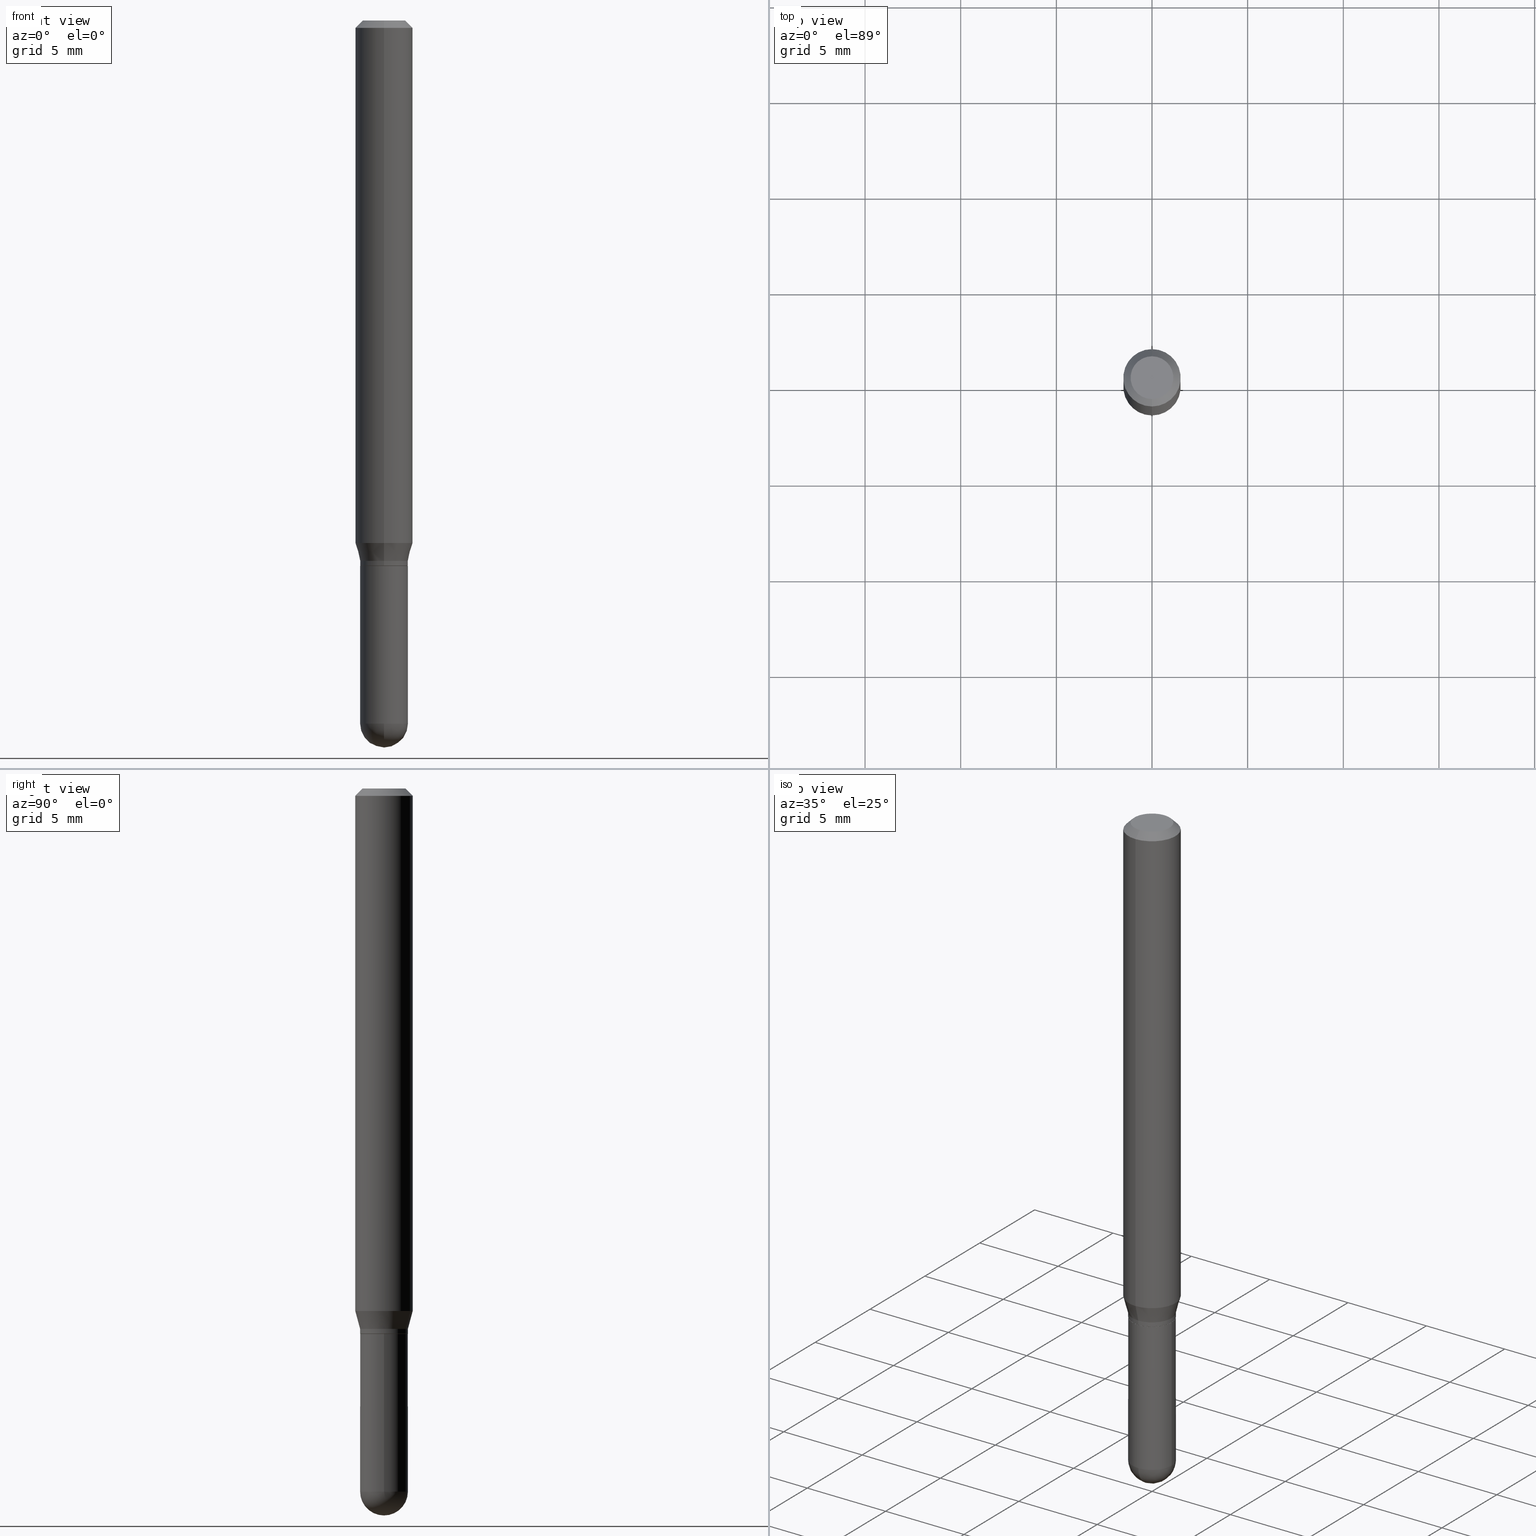
[diagram: canonical four-view strip — front | top / right | iso, engineering-drawing reading convention]
A machine part, canonical four-view strip (front | top / right | iso — engineering-drawing reading convention). The complete STEP part file that produces these views, byte-faithful:
ISO-10303-21;
HEADER;
FILE_DESCRIPTION (( 'STEP AP203' ),
    '1' );
FILE_NAME ('48866.STEP',
    '2024-03-08T13:32:18',
    ( '' ),
    ( '' ),
    'SwSTEP 2.0',
    'SolidWorks 2023',
    '' );
FILE_SCHEMA (( 'CONFIG_CONTROL_DESIGN' ));
ENDSEC;

DATA;
#1 = DIRECTION ( 'NONE',  ( -2.445540907336680445E-29, 3.491378085890391934E-15, 1.000000000000000000 ) ) ;
#2 = DIRECTION ( 'NONE',  ( -2.445468806185136597E-29, 3.491481338843145583E-15, 1.000000000000000000 ) ) ;
#3 = AXIS2_PLACEMENT_3D ( 'NONE', #433, #74, #396 ) ;
#4 = ORGANIZATION ( 'UNSPECIFIED', 'UNSPECIFIED', '' ) ;
#5 = DIRECTION ( 'NONE',  ( 1.000000000000000000, -6.982962677686261977E-15, 0.000000000000000000 ) ) ;
#6 = ORIENTED_EDGE ( 'NONE', *, *, #28, .T. ) ;
#7 = ORIENTED_EDGE ( 'NONE', *, *, #111, .F. ) ;
#8 = PERSON_AND_ORGANIZATION ( #29, #4 ) ;
#9 = EDGE_CURVE ( 'NONE', #94, #474, #416, .T. ) ;
#10 = VERTEX_POINT ( 'NONE', #451 ) ;
#11 = DATE_TIME_ROLE ( 'creation_date' ) ;
#12 = AXIS2_PLACEMENT_3D ( 'NONE', #122, #441, #270 ) ;
#13 = CC_DESIGN_APPROVAL ( #426, ( #40 ) ) ;
#14 = DIRECTION ( 'NONE',  ( -2.445540907336680445E-29, 3.491378085890391934E-15, 1.000000000000000000 ) ) ;
#15 = ORIENTED_EDGE ( 'NONE', *, *, #9, .F. ) ;
#16 = MECHANICAL_CONTEXT ( 'NONE', #109, 'mechanical' ) ;
#17 = FACE_OUTER_BOUND ( 'NONE', #91, .T. ) ;
#18 = EDGE_LOOP ( 'NONE', ( #480, #438, #165, #86 ) ) ;
#19 = VERTEX_POINT ( 'NONE', #83 ) ;
#20 = EDGE_CURVE ( 'NONE', #354, #318, #149, .T. ) ;
#21 = DIRECTION ( 'NONE',  ( -6.982962677686265922E-15, -1.000000000000000000, 0.000000000000000000 ) ) ;
#22 = CARTESIAN_POINT ( 'NONE',  ( 2.719686043049122243E-29, -3.882761569318704737E-15, -1.112099999999999866 ) ) ;
#23 = CIRCLE ( 'NONE', #344, 0.04920000000000000068 ) ;
#24 = DIRECTION ( 'NONE',  ( 6.982962677686265922E-15, 1.000000000000000000, -3.491378085890391934E-15 ) ) ;
#25 = CARTESIAN_POINT ( 'NONE',  ( 3.534141397526511158E-29, -5.057849611423951529E-15, -1.446899999999999853 ) ) ;
#26 = PRODUCT_RELATED_PRODUCT_CATEGORY ( 'detail', '', ( #120 ) ) ;
#27 = DIRECTION ( 'NONE',  ( 1.000000000000000000, -6.982962677686261977E-15, 0.000000000000000000 ) ) ;
#28 = EDGE_CURVE ( 'NONE', #318, #354, #159, .T. ) ;
#29 = PERSON ( 'UNSPECIFIED', 'UNSPECIFIED', 'UNSPECIFIED', ('UNSPECIFIED'), ('UNSPECIFIED'), ('UNSPECIFIED') ) ;
#30 = DIRECTION ( 'NONE',  ( -4.851104656540965064E-15, -0.7071067811865501263, -0.7071067811865449082 ) ) ;
#31 = CIRCLE ( 'NONE', #386, 0.05905000000000001914 ) ;
#32 = CIRCLE ( 'NONE', #331, 0.05904999999999999832 ) ;
#33 = PRODUCT_DEFINITION_FORMATION_WITH_SPECIFIED_SOURCE ( 'ANY', '', #120, .NOT_KNOWN. ) ;
#34 = ADVANCED_FACE ( 'NONE', ( #278 ), #443, .T. ) ;
#35 = DIRECTION ( 'NONE',  ( -2.445540907336680445E-29, 3.491378085890391934E-15, 1.000000000000000000 ) ) ;
#36 = CARTESIAN_POINT ( 'NONE',  ( -3.400702824032937589E-16, -0.04870000000000392071, -1.122099999999999653 ) ) ;
#37 = VERTEX_POINT ( 'NONE', #487 ) ;
#38 = CARTESIAN_POINT ( 'NONE',  ( 3.538348815669273817E-29, -5.051824349172146609E-15, -1.446899999999999853 ) ) ;
#39 = AXIS2_PLACEMENT_3D ( 'NONE', #457, #68, #425 ) ;
#40 = SECURITY_CLASSIFICATION ( '', '', #147 ) ;
#41 = PLANE ( 'NONE',  #105 ) ;
#42 = ADVANCED_FACE ( 'NONE', ( #124 ), #364, .T. ) ;
#43 = PRODUCT_DEFINITION_SHAPE ( 'NONE', 'NONE',  #130 ) ;
#44 = DIRECTION ( 'NONE',  ( -1.000000000000000000, 6.982962677686265922E-15, -4.876176775795935793E-29 ) ) ;
#45 = VERTEX_POINT ( 'NONE', #342 ) ;
#46 = CARTESIAN_POINT ( 'NONE',  ( 3.495870259939701837E-16, 0.04920000000000013946, -1.717758018258077623E-16 ) ) ;
#47 = DIRECTION ( 'NONE',  ( -2.445468806185136597E-29, 3.491481338843145583E-15, 1.000000000000000000 ) ) ;
#48 = VECTOR ( 'NONE', #296, 39.37007874015748143 ) ;
#49 = ORIENTED_EDGE ( 'NONE', *, *, #61, .F. ) ;
#50 = ADVANCED_FACE ( 'NONE', ( #417 ), #228, .T. ) ;
#51 = AXIS2_PLACEMENT_3D ( 'NONE', #460, #461, #265 ) ;
#52 = CALENDAR_DATE ( 2024, 8, 3 ) ;
#53 = PERSON_AND_ORGANIZATION ( #29, #4 ) ;
#54 = ORIENTED_EDGE ( 'NONE', *, *, #448, .T. ) ;
#55 = DIRECTION ( 'NONE',  ( -2.445540907336680445E-29, 3.491378085890391934E-15, 1.000000000000000000 ) ) ;
#56 = CLOSED_SHELL ( 'NONE', ( #187, #203, #142, #298, #50, #247, #392, #131, #208, #304, #34, #193 ) ) ;
#57 = PERSON_AND_ORGANIZATION ( #29, #4 ) ;
#58 = ADVANCED_FACE ( 'NONE', ( #17 ), #404, .T. ) ;
#59 = CARTESIAN_POINT ( 'NONE',  ( -3.435617637421385410E-16, -0.04920000000000408769, -1.112099999999999644 ) ) ;
#60 = CARTESIAN_POINT ( 'NONE',  ( 0.000000000000000000, 0.000000000000000000, 0.000000000000000000 ) ) ;
#61 = EDGE_CURVE ( 'NONE', #138, #10, #63, .T. ) ;
#62 = PERSON_AND_ORGANIZATION_ROLE ( 'creator' ) ;
#63 = LINE ( 'NONE', #46, #260 ) ;
#64 = AXIS2_PLACEMENT_3D ( 'NONE', #399, #201, #272 ) ;
#65 = FACE_OUTER_BOUND ( 'NONE', #367, .T. ) ;
#66 = FACE_OUTER_BOUND ( 'NONE', #161, .T. ) ;
#67 = EDGE_CURVE ( 'NONE', #245, #10, #409, .T. ) ;
#68 = DIRECTION ( 'NONE',  ( -2.445540907336680445E-29, 3.491378085890391934E-15, 1.000000000000000000 ) ) ;
#69 = LINE ( 'NONE', #186, #229 ) ;
#70 = ORIENTED_EDGE ( 'NONE', *, *, #506, .F. ) ;
#71 = CIRCLE ( 'NONE', #430, 0.04920000000000020191 ) ;
#72 = DIRECTION ( 'NONE',  ( 1.839019923739597160E-15, 0.2588190451025245142, 0.9659258262890673130 ) ) ;
#73 = ORIENTED_EDGE ( 'NONE', *, *, #448, .F. ) ;
#74 = DIRECTION ( 'NONE',  ( -2.445540907336680445E-29, 3.491378085890391934E-15, 1.000000000000000000 ) ) ;
#75 = CARTESIAN_POINT ( 'NONE',  ( 0.000000000000000000, 0.000000000000000000, 0.000000000000000000 ) ) ;
#76 = ORIENTED_EDGE ( 'NONE', *, *, #370, .T. ) ;
#77 = CLOSED_SHELL ( 'NONE', ( #42, #152, #432, #58, #440 ) ) ;
#78 = VECTOR ( 'NONE', #489, 39.37007874015748143 ) ;
#79 = AXIS2_PLACEMENT_3D ( 'NONE', #256, #295, #454 ) ;
#80 = ORIENTED_EDGE ( 'NONE', *, *, #406, .F. ) ;
#81 = PLANE ( 'NONE',  #64 ) ;
#82 = ORIENTED_EDGE ( 'NONE', *, *, #156, .T. ) ;
#83 = CARTESIAN_POINT ( 'NONE',  ( -4.123439461173478031E-16, -0.05905000000000376614, -1.075339299545447158 ) ) ;
#84 = DIRECTION ( 'NONE',  ( -2.445540907336680445E-29, 3.491378085890391934E-15, 1.000000000000000000 ) ) ;
#85 = CC_DESIGN_PERSON_AND_ORGANIZATION_ASSIGNMENT ( #389, #263, ( #40 ) ) ;
#86 = ORIENTED_EDGE ( 'NONE', *, *, #456, .F. ) ;
#87 = FACE_OUTER_BOUND ( 'NONE', #217, .T. ) ;
#88 = DATE_TIME_ROLE ( 'classification_date' ) ;
#89 = AXIS2_PLACEMENT_3D ( 'NONE', #498, #388, #24 ) ;
#90 = EDGE_CURVE ( 'NONE', #354, #138, #455, .T. ) ;
#91 = EDGE_LOOP ( 'NONE', ( #327, #241, #70, #301 ) ) ;
#92 = LINE ( 'NONE', #59, #497 ) ;
#93 = DIRECTION ( 'NONE',  ( -6.982962677686266711E-15, -1.000000000000000000, 2.804772067417108113E-15 ) ) ;
#94 = VERTEX_POINT ( 'NONE', #167 ) ;
#95 = DATE_AND_TIME ( #286, #492 ) ;
#96 = FACE_OUTER_BOUND ( 'NONE', #368, .T. ) ;
#97 = ORIENTED_EDGE ( 'NONE', *, *, #90, .F. ) ;
#98 = DATE_AND_TIME ( #137, #101 ) ;
#99 = ORIENTED_EDGE ( 'NONE', *, *, #362, .F. ) ;
#100 = DIRECTION ( 'NONE',  ( -1.000000000000000000, 6.982962677686265922E-15, -4.883557194083112340E-29 ) ) ;
#101 = LOCAL_TIME ( 8, 32, 18.00000000000000000, #216 ) ;
#102 = DIRECTION ( 'NONE',  ( -2.445540907336680445E-29, 3.491378085890391934E-15, 1.000000000000000000 ) ) ;
#103 = VERTEX_POINT ( 'NONE', #325 ) ;
#104 = CARTESIAN_POINT ( 'NONE',  ( 3.668311361005134383E-31, -5.237067128835749592E-17, -0.01500000000000046262 ) ) ;
#105 = AXIS2_PLACEMENT_3D ( 'NONE', #403, #317, #44 ) ;
#106 = DIRECTION ( 'NONE',  ( -2.445540907336680445E-29, 3.491378085890391934E-15, 1.000000000000000000 ) ) ;
#107 = DIRECTION ( 'NONE',  ( 6.982962677686265922E-15, 1.000000000000000000, -3.505890868245044514E-15 ) ) ;
#108 = CARTESIAN_POINT ( 'NONE',  ( 2.742918681668820701E-29, -3.915929661134663382E-15, -1.121599999999999930 ) ) ;
#109 = APPLICATION_CONTEXT ( 'configuration controlled 3d designs of mechanical parts and assemblies' ) ;
#110 = ORIENTED_EDGE ( 'NONE', *, *, #121, .F. ) ;
#111 = EDGE_CURVE ( 'NONE', #474, #94, #31, .T. ) ;
#112 = CARTESIAN_POINT ( 'NONE',  ( 1.133656262477719304E-44, -1.618465109241457834E-30, -4.635605395422842505E-16 ) ) ;
#113 = CIRCLE ( 'NONE', #276, 0.04920000000000007007 ) ;
#114 = APPROVAL_PERSON_ORGANIZATION ( #178, #117, #484 ) ;
#115 = DIRECTION ( 'NONE',  ( 1.000000000000000000, -6.982962677686261977E-15, 0.000000000000000000 ) ) ;
#116 = ORIENTED_EDGE ( 'NONE', *, *, #291, .T. ) ;
#117 = APPROVAL ( #334, 'UNSPECIFIED' ) ;
#118 = DIRECTION ( 'NONE',  ( -6.982962677686265922E-15, -1.000000000000000000, 4.626330217890369336E-15 ) ) ;
#119 = ORIENTED_EDGE ( 'NONE', *, *, #275, .T. ) ;
#120 = PRODUCT ( '48866', '48866', '', ( #16 ) ) ;
#121 = EDGE_CURVE ( 'NONE', #19, #474, #136, .T. ) ;
#122 = CARTESIAN_POINT ( 'NONE',  ( 0.000000000000000000, 0.000000000000000000, 0.000000000000000000 ) ) ;
#123 = AXIS2_PLACEMENT_3D ( 'NONE', #60, #2, #143 ) ;
#124 = FACE_OUTER_BOUND ( 'NONE', #471, .T. ) ;
#125 = CIRCLE ( 'NONE', #418, 0.04920000000000000068 ) ;
#126 = EDGE_LOOP ( 'NONE', ( #97, #398, #314, #316 ) ) ;
#127 = LINE ( 'NONE', #509, #483 ) ;
#128 = ORIENTED_EDGE ( 'NONE', *, *, #163, .T. ) ;
#129 = DIRECTION ( 'NONE',  ( -2.445468806185136597E-29, 3.491481338843145583E-15, 1.000000000000000000 ) ) ;
#130 = PRODUCT_DEFINITION ( 'UNKNOWN', '', #33, #227 ) ;
#131 = ADVANCED_FACE ( 'NONE', ( #179 ), #473, .T. ) ;
#132 = DIRECTION ( 'NONE',  ( 1.000000000000000000, -6.982962677686261977E-15, 0.000000000000000000 ) ) ;
#133 = AXIS2_PLACEMENT_3D ( 'NONE', #258, #292, #420 ) ;
#134 = AXIS2_PLACEMENT_3D ( 'NONE', #363, #162, #166 ) ;
#135 = DIRECTION ( 'NONE',  ( -1.807323732225326984E-15, -0.2588190451025177419, 0.9659258262890690894 ) ) ;
#136 = LINE ( 'NONE', #447, #373 ) ;
#137 = CALENDAR_DATE ( 2024, 8, 3 ) ;
#138 = VERTEX_POINT ( 'NONE', #449 ) ;
#139 = COORDINATED_UNIVERSAL_TIME_OFFSET ( 5, 0, .BEHIND. ) ;
#140 = DIRECTION ( 'NONE',  ( 2.445540907336680445E-29, -3.491378085890391934E-15, -1.000000000000000000 ) ) ;
#141 = PERSON_AND_ORGANIZATION ( #29, #4 ) ;
#142 = ADVANCED_FACE ( 'NONE', ( #96 ), #212, .T. ) ;
#143 = DIRECTION ( 'NONE',  ( 1.000000000000000000, -6.982962677686266711E-15, 4.876176775795935793E-29 ) ) ;
#144 = AXIS2_PLACEMENT_3D ( 'NONE', #477, #129, #280 ) ;
#145 = CC_DESIGN_PERSON_AND_ORGANIZATION_ASSIGNMENT ( #53, #176, ( #120 ) ) ;
#146 = DIRECTION ( 'NONE',  ( -6.982962677686265922E-15, -1.000000000000000000, 2.776268286244158643E-15 ) ) ;
#147 = SECURITY_CLASSIFICATION_LEVEL ( 'unclassified' ) ;
#148 = CARTESIAN_POINT ( 'NONE',  ( 0.000000000000000000, 0.000000000000000000, 0.000000000000000000 ) ) ;
#149 = CIRCLE ( 'NONE', #210, 0.04870000000000000023 ) ;
#150 = CARTESIAN_POINT ( 'NONE',  ( -3.435617637421385410E-16, -0.04920000000000408769, -1.112099999999999644 ) ) ;
#151 = EDGE_CURVE ( 'NONE', #37, #474, #458, .T. ) ;
#152 = ADVANCED_FACE ( 'NONE', ( #231 ), #300, .T. ) ;
#153 = CARTESIAN_POINT ( 'NONE',  ( 3.534141397526511158E-29, -5.057849611423951529E-15, -1.446899999999999853 ) ) ;
#154 = ORIENTED_EDGE ( 'NONE', *, *, #67, .F. ) ;
#155 = FACE_OUTER_BOUND ( 'NONE', #214, .T. ) ;
#156 = EDGE_CURVE ( 'NONE', #37, #103, #375, .T. ) ;
#157 = ORIENTED_EDGE ( 'NONE', *, *, #111, .T. ) ;
#158 = DIRECTION ( 'NONE',  ( -6.982962677686265922E-15, -1.000000000000000000, 2.776268286244158643E-15 ) ) ;
#159 = CIRCLE ( 'NONE', #267, 0.04870000000000000023 ) ;
#160 = CIRCLE ( 'NONE', #194, 0.04920000000000007007 ) ;
#161 = EDGE_LOOP ( 'NONE', ( #119, #82 ) ) ;
#162 = DIRECTION ( 'NONE',  ( -2.445540907336680445E-29, 3.491378085890391934E-15, 1.000000000000000000 ) ) ;
#163 = EDGE_CURVE ( 'NONE', #45, #138, #261, .T. ) ;
#164 = CARTESIAN_POINT ( 'NONE',  ( 4.123439461173744764E-16, 0.05904999999999996363, -0.01500000000000067078 ) ) ;
#165 = ORIENTED_EDGE ( 'NONE', *, *, #309, .F. ) ;
#166 = DIRECTION ( 'NONE',  ( -6.982962677686265133E-15, -1.000000000000000000, 2.776268286244166532E-15 ) ) ;
#167 = CARTESIAN_POINT ( 'NONE',  ( 4.195754854663657226E-16, 0.05904999999999996363, -0.01500000000000067078 ) ) ;
#168 = CIRCLE ( 'NONE', #134, 0.04920000000000006313 ) ;
#169 = APPROVAL_PERSON_ORGANIZATION ( #141, #352, #482 ) ;
#170 = CARTESIAN_POINT ( 'NONE',  ( -0.04920000000000000068, -4.135220753750050718E-15, -1.122099999999999875 ) ) ;
#171 = EDGE_CURVE ( 'NONE', #351, #211, #160, .T. ) ;
#172 = ORIENTED_EDGE ( 'NONE', *, *, #341, .T. ) ;
#173 = CALENDAR_DATE ( 2024, 8, 3 ) ;
#174 = DATE_AND_TIME ( #450, #238 ) ;
#175 = APPROVAL_STATUS ( 'not_yet_approved' ) ;
#176 = PERSON_AND_ORGANIZATION_ROLE ( 'design_owner' ) ;
#177 = AXIS2_PLACEMENT_3D ( 'NONE', #335, #140, #287 ) ;
#178 = PERSON_AND_ORGANIZATION ( #29, #4 ) ;
#179 = FACE_OUTER_BOUND ( 'NONE', #499, .T. ) ;
#180 = LINE ( 'NONE', #224, #78 ) ;
#181 = DIRECTION ( 'NONE',  ( -2.445540907336680445E-29, 3.491378085890391934E-15, 1.000000000000000000 ) ) ;
#182 = ORIENTED_EDGE ( 'NONE', *, *, #309, .T. ) ;
#183 = CC_DESIGN_PERSON_AND_ORGANIZATION_ASSIGNMENT ( #290, #250, ( #130 ) ) ;
#184 =( NAMED_UNIT ( * ) SI_UNIT ( $, .STERADIAN. ) SOLID_ANGLE_UNIT ( ) );
#185 = CARTESIAN_POINT ( 'NONE',  ( 3.460343123151961558E-16, 0.04869999999999607976, -1.122100000000000097 ) ) ;
#186 = CARTESIAN_POINT ( 'NONE',  ( -3.400702824032937589E-16, -0.04870000000000392071, -1.122099999999999653 ) ) ;
#187 = ADVANCED_FACE ( 'NONE', ( #65 ), #305, .T. ) ;
#188 = CARTESIAN_POINT ( 'NONE',  ( 3.495870259940048443E-16, 0.04919999999999498386, -1.446900000000000075 ) ) ;
#189 = VERTEX_POINT ( 'NONE', #195 ) ;
#190 = COORDINATED_UNIVERSAL_TIME_OFFSET ( 5, 0, .BEHIND. ) ;
#191 = DIRECTION ( 'NONE',  ( -2.445468806185136877E-29, 3.491481338843145188E-15, 1.000000000000000000 ) ) ;
#192 = SHAPE_DEFINITION_REPRESENTATION ( #43, #234 ) ;
#193 = ADVANCED_FACE ( 'NONE', ( #268 ), #237, .T. ) ;
#194 = AXIS2_PLACEMENT_3D ( 'NONE', #25, #462, #422 ) ;
#195 = CARTESIAN_POINT ( 'NONE',  ( 4.195754854663652789E-16, 0.05904999999999623744, -1.075339299545447380 ) ) ;
#196 = EDGE_CURVE ( 'NONE', #10, #189, #235, .T. ) ;
#197 = DIRECTION ( 'NONE',  ( 2.445540907336680445E-29, -3.491378085890391934E-15, -1.000000000000000000 ) ) ;
#198 = ORIENTED_EDGE ( 'NONE', *, *, #376, .F. ) ;
#199 = DIRECTION ( 'NONE',  ( -2.445540907336680445E-29, 3.491378085890391934E-15, 1.000000000000000000 ) ) ;
#200 = ORIENTED_EDGE ( 'NONE', *, *, #196, .F. ) ;
#201 = DIRECTION ( 'NONE',  ( -2.445540907336680165E-29, 3.491378085890391934E-15, 1.000000000000000000 ) ) ;
#202 = ORIENTED_EDGE ( 'NONE', *, *, #376, .T. ) ;
#203 = ADVANCED_FACE ( 'NONE', ( #155 ), #465, .T. ) ;
#204 = CARTESIAN_POINT ( 'NONE',  ( 0.04920000000000000068, -4.261352974058057450E-15, -1.122099999999999875 ) ) ;
#205 = FACE_OUTER_BOUND ( 'NONE', #397, .T. ) ;
#206 = DIRECTION ( 'NONE',  ( -6.982962677686265922E-15, -1.000000000000000000, 2.776268286244158643E-15 ) ) ;
#207 = CC_DESIGN_PERSON_AND_ORGANIZATION_ASSIGNMENT ( #346, #427, ( #33 ) ) ;
#208 = ADVANCED_FACE ( 'NONE', ( #66 ), #240, .F. ) ;
#209 = DIRECTION ( 'NONE',  ( 1.000000000000000000, -6.982962677686266711E-15, 4.876176775795935793E-29 ) ) ;
#210 = AXIS2_PLACEMENT_3D ( 'NONE', #221, #14, #340 ) ;
#211 = VERTEX_POINT ( 'NONE', #188 ) ;
#212 = CONICAL_SURFACE ( 'NONE', #466, 0.05905000000000001914, 0.7853981633974485010 ) ;
#213 =( GEOMETRIC_REPRESENTATION_CONTEXT ( 3 ) GLOBAL_UNCERTAINTY_ASSIGNED_CONTEXT ( ( #421 ) ) GLOBAL_UNIT_ASSIGNED_CONTEXT ( ( #413, #377, #184 ) ) REPRESENTATION_CONTEXT ( 'NONE', 'WORKASPACE' ) );
#214 = EDGE_LOOP ( 'NONE', ( #6, #512, #289, #285 ) ) ;
#215 = COORDINATED_UNIVERSAL_TIME_OFFSET ( 5, 0, .BEHIND. ) ;
#216 = COORDINATED_UNIVERSAL_TIME_OFFSET ( 5, 0, .BEHIND. ) ;
#217 = EDGE_LOOP ( 'NONE', ( #182, #172, #7, #110 ) ) ;
#218 = COORDINATED_UNIVERSAL_TIME_OFFSET ( 5, 0, .BEHIND. ) ;
#219 = CARTESIAN_POINT ( 'NONE',  ( 3.534141397526511158E-29, -5.057849611423951529E-15, -1.446899999999999853 ) ) ;
#220 = AXIS2_PLACEMENT_3D ( 'NONE', #108, #353, #264 ) ;
#221 = CARTESIAN_POINT ( 'NONE',  ( 2.744141452122489070E-29, -3.917675350177608325E-15, -1.122099999999999875 ) ) ;
#222 = EDGE_CURVE ( 'NONE', #318, #45, #69, .T. ) ;
#223 = ORIENTED_EDGE ( 'NONE', *, *, #495, .F. ) ;
#224 = CARTESIAN_POINT ( 'NONE',  ( 0.04920000000000000068, -3.435617637421643269E-16, 2.399078973691600472E-30 ) ) ;
#225 = EDGE_CURVE ( 'NONE', #211, #359, #282, .T. ) ;
#226 = DIRECTION ( 'NONE',  ( -6.982962677686266711E-15, -1.000000000000000000, 2.804772067417108113E-15 ) ) ;
#227 = DESIGN_CONTEXT ( 'detailed design', #332, 'design' ) ;
#228 = CONICAL_SURFACE ( 'NONE', #133, 0.04920000000000020191, 0.2617993877991497964 ) ;
#229 = VECTOR ( 'NONE', #347, 39.37007874015748143 ) ;
#230 = CC_DESIGN_APPROVAL ( #352, ( #130 ) ) ;
#231 = FACE_OUTER_BOUND ( 'NONE', #271, .T. ) ;
#232 = CARTESIAN_POINT ( 'NONE',  ( 3.538348815669273817E-29, -5.051824349172146609E-15, -1.446899999999999853 ) ) ;
#233 = EDGE_CURVE ( 'NONE', #359, #442, #496, .T. ) ;
#234 = ADVANCED_BREP_SHAPE_REPRESENTATION ( '48866', ( #307, #319, #79 ), #213 ) ;
#235 = LINE ( 'NONE', #431, #491 ) ;
#236 = CIRCLE ( 'NONE', #3, 0.05904999999999999832 ) ;
#237 = CYLINDRICAL_SURFACE ( 'NONE', #444, 0.04920000000000013946 ) ;
#238 = LOCAL_TIME ( 8, 32, 18.00000000000000000, #215 ) ;
#239 = VERTEX_POINT ( 'NONE', #348 ) ;
#240 = PLANE ( 'NONE',  #89 ) ;
#241 = ORIENTED_EDGE ( 'NONE', *, *, #495, .T. ) ;
#242 = DIRECTION ( 'NONE',  ( -2.445468806185136597E-29, 3.491481338843145583E-15, 1.000000000000000000 ) ) ;
#243 = DIRECTION ( 'NONE',  ( -6.982962677686265922E-15, -1.000000000000000000, 3.491378085890392328E-15 ) ) ;
#244 = AXIS2_PLACEMENT_3D ( 'NONE', #308, #493, #146 ) ;
#245 = VERTEX_POINT ( 'NONE', #150 ) ;
#246 = LINE ( 'NONE', #164, #323 ) ;
#247 = ADVANCED_FACE ( 'NONE', ( #303 ), #312, .T. ) ;
#248 = DIRECTION ( 'NONE',  ( -2.445540907336680445E-29, 3.491378085890391934E-15, 1.000000000000000000 ) ) ;
#249 = CARTESIAN_POINT ( 'NONE',  ( 0.000000000000000000, 0.000000000000000000, 0.000000000000000000 ) ) ;
#250 = PERSON_AND_ORGANIZATION_ROLE ( 'creator' ) ;
#251 = CIRCLE ( 'NONE', #51, 0.04405000000000000582 ) ;
#252 = CARTESIAN_POINT ( 'NONE',  ( 3.668311361005134383E-31, -5.237067128835749592E-17, -0.01500000000000046262 ) ) ;
#253 = ORIENTED_EDGE ( 'NONE', *, *, #384, .F. ) ;
#254 = APPLICATION_PROTOCOL_DEFINITION ( 'international standard', 'config_control_design', 1994, #332 ) ;
#255 = CIRCLE ( 'NONE', #452, 0.04920000000000000068 ) ;
#256 = CARTESIAN_POINT ( 'NONE',  ( 0.000000000000000000, 0.000000000000000000, 0.000000000000000000 ) ) ;
#257 = ORIENTED_EDGE ( 'NONE', *, *, #338, .T. ) ;
#258 = CARTESIAN_POINT ( 'NONE',  ( 2.719686043049122243E-29, -3.882761569318704737E-15, -1.112099999999999866 ) ) ;
#259 = CARTESIAN_POINT ( 'NONE',  ( -4.051124067684086217E-16, -0.05905000000000006771, -0.01500000000000025618 ) ) ;
#260 = VECTOR ( 'NONE', #383, 39.37007874015748143 ) ;
#261 = CIRCLE ( 'NONE', #220, 0.04920000000000006313 ) ;
#262 = CARTESIAN_POINT ( 'NONE',  ( 2.744141452122489070E-29, -3.917675350177608325E-15, -1.122099999999999875 ) ) ;
#263 = PERSON_AND_ORGANIZATION_ROLE ( 'classification_officer' ) ;
#264 = DIRECTION ( 'NONE',  ( -6.982962677686265133E-15, -1.000000000000000000, 2.776268286244166532E-15 ) ) ;
#265 = DIRECTION ( 'NONE',  ( -6.982962677686265133E-15, -1.000000000000000000, 3.491378085890391539E-15 ) ) ;
#266 = EDGE_LOOP ( 'NONE', ( #200, #407, #510, #253 ) ) ;
#267 = AXIS2_PLACEMENT_3D ( 'NONE', #472, #385, #93 ) ;
#268 = FACE_OUTER_BOUND ( 'NONE', #310, .T. ) ;
#269 = ORIENTED_EDGE ( 'NONE', *, *, #225, .T. ) ;
#270 = DIRECTION ( 'NONE',  ( -6.982962677686265922E-15, -1.000000000000000000, 3.491378085890392328E-15 ) ) ;
#271 = EDGE_LOOP ( 'NONE', ( #223, #333, #73, #281 ) ) ;
#272 = DIRECTION ( 'NONE',  ( -6.982962677686265922E-15, -1.000000000000000000, 3.491378085890391934E-15 ) ) ;
#273 = ORIENTED_EDGE ( 'NONE', *, *, #468, .F. ) ;
#274 = CARTESIAN_POINT ( 'NONE',  ( 3.652354753719438961E-29, -5.232643124420936646E-15, -1.496099999999999985 ) ) ;
#275 = EDGE_CURVE ( 'NONE', #103, #37, #251, .T. ) ;
#276 = AXIS2_PLACEMENT_3D ( 'NONE', #382, #100, #21 ) ;
#277 = ORIENTED_EDGE ( 'NONE', *, *, #151, .T. ) ;
#278 = FACE_OUTER_BOUND ( 'NONE', #126, .T. ) ;
#279 = CYLINDRICAL_SURFACE ( 'NONE', #401, 0.04920000000000000068 ) ;
#280 = DIRECTION ( 'NONE',  ( 1.000000000000000000, -6.982962677686261977E-15, 0.000000000000000000 ) ) ;
#281 = ORIENTED_EDGE ( 'NONE', *, *, #338, .F. ) ;
#282 = CIRCLE ( 'NONE', #507, 0.04920000000000000068 ) ;
#283 = CC_DESIGN_SECURITY_CLASSIFICATION ( #40, ( #33 ) ) ;
#284 = DIRECTION ( 'NONE',  ( -2.445468806185136597E-29, 3.491481338843145583E-15, 1.000000000000000000 ) ) ;
#285 = ORIENTED_EDGE ( 'NONE', *, *, #222, .F. ) ;
#286 = CALENDAR_DATE ( 2024, 8, 3 ) ;
#287 = DIRECTION ( 'NONE',  ( 6.982962677686265922E-15, 1.000000000000000000, -3.505890868245044514E-15 ) ) ;
#288 = ORIENTED_EDGE ( 'NONE', *, *, #156, .F. ) ;
#289 = ORIENTED_EDGE ( 'NONE', *, *, #163, .F. ) ;
#290 = PERSON_AND_ORGANIZATION ( #29, #4 ) ;
#291 = EDGE_CURVE ( 'NONE', #442, #371, #255, .T. ) ;
#292 = DIRECTION ( 'NONE',  ( -2.445540907336680445E-29, 3.491378085890391934E-15, 1.000000000000000000 ) ) ;
#293 = APPROVAL_DATE_TIME ( #98, #426 ) ;
#294 = AXIS2_PLACEMENT_3D ( 'NONE', #437, #360, #315 ) ;
#295 = DIRECTION ( 'NONE',  ( 0.000000000000000000, 0.000000000000000000, 1.000000000000000000 ) ) ;
#296 = DIRECTION ( 'NONE',  ( 5.024295867788190974E-15, 0.7071067811865681119, 0.7071067811865270336 ) ) ;
#297 = DIRECTION ( 'NONE',  ( 1.000000000000000000, -6.982962677686265922E-15, 4.883557194083112340E-29 ) ) ;
#298 = ADVANCED_FACE ( 'NONE', ( #87 ), #313, .T. ) ;
#299 = ORIENTED_EDGE ( 'NONE', *, *, #9, .T. ) ;
#300 = SPHERICAL_SURFACE ( 'NONE', #423, 0.04920000000000007007 ) ;
#301 = ORIENTED_EDGE ( 'NONE', *, *, #225, .F. ) ;
#302 = CIRCLE ( 'NONE', #144, 0.04920000000000000068 ) ;
#303 = FACE_OUTER_BOUND ( 'NONE', #266, .T. ) ;
#304 = ADVANCED_FACE ( 'NONE', ( #475 ), #81, .F. ) ;
#305 = CYLINDRICAL_SURFACE ( 'NONE', #39, 0.04920000000000013946 ) ;
#306 = EDGE_LOOP ( 'NONE', ( #202, #116 ) ) ;
#307 = MANIFOLD_SOLID_BREP ( 'Body-Move/Copy2[1]', #77 ) ;
#308 = CARTESIAN_POINT ( 'NONE',  ( 2.719686043049122243E-29, -3.882761569318704737E-15, -1.112099999999999866 ) ) ;
#309 = EDGE_CURVE ( 'NONE', #19, #189, #236, .T. ) ;
#310 = EDGE_LOOP ( 'NONE', ( #49, #76, #488, #380 ) ) ;
#311 = AXIS2_PLACEMENT_3D ( 'NONE', #252, #181, #485 ) ;
#312 = CONICAL_SURFACE ( 'NONE', #244, 0.04920000000000020191, 0.2617993877991497964 ) ;
#313 = CYLINDRICAL_SURFACE ( 'NONE', #12, 0.05905000000000000526 ) ;
#314 = ORIENTED_EDGE ( 'NONE', *, *, #222, .T. ) ;
#315 = DIRECTION ( 'NONE',  ( 1.000000000000000000, -6.982962677686261977E-15, 0.000000000000000000 ) ) ;
#316 = ORIENTED_EDGE ( 'NONE', *, *, #370, .F. ) ;
#317 = DIRECTION ( 'NONE',  ( 2.438088387897960049E-29, -3.491481338843145188E-15, -1.000000000000000000 ) ) ;
#318 = VERTEX_POINT ( 'NONE', #36 ) ;
#319 = MANIFOLD_SOLID_BREP ( 'Body-Move/Copy2[2]', #56 ) ;
#320 = ORIENTED_EDGE ( 'NONE', *, *, #233, .T. ) ;
#321 = CARTESIAN_POINT ( 'NONE',  ( -3.435617637421291240E-16, -0.04920000000000508689, -1.446899999999999631 ) ) ;
#322 = AXIS2_PLACEMENT_3D ( 'NONE', #22, #248, #206 ) ;
#323 = VECTOR ( 'NONE', #402, 39.37007874015748143 ) ;
#324 = ORIENTED_EDGE ( 'NONE', *, *, #20, .F. ) ;
#325 = CARTESIAN_POINT ( 'NONE',  ( 3.599717260347272986E-16, 0.04405000000000000582, -6.173557442257560111E-16 ) ) ;
#326 = CARTESIAN_POINT ( 'NONE',  ( 4.195754854663391478E-16, 0.05905000000000000526, -2.061658759718276850E-16 ) ) ;
#327 = ORIENTED_EDGE ( 'NONE', *, *, #171, .F. ) ;
#328 =( LENGTH_UNIT ( ) NAMED_UNIT ( * ) SI_UNIT ( $, .METRE. ) );
#329 = APPROVAL_ROLE ( '' ) ;
#330 = APPROVAL_STATUS ( 'not_yet_approved' ) ;
#331 = AXIS2_PLACEMENT_3D ( 'NONE', #405, #511, #118 ) ;
#332 = APPLICATION_CONTEXT ( 'configuration controlled 3d designs of mechanical parts and assemblies' ) ;
#333 = ORIENTED_EDGE ( 'NONE', *, *, #171, .T. ) ;
#334 = APPROVAL_STATUS ( 'not_yet_approved' ) ;
#335 = CARTESIAN_POINT ( 'NONE',  ( 3.668311361005134383E-31, -5.237067128835749592E-17, -0.01500000000000046262 ) ) ;
#336 = ORIENTED_EDGE ( 'NONE', *, *, #384, .T. ) ;
#337 = CC_DESIGN_DATE_AND_TIME_ASSIGNMENT ( #411, #88, ( #40 ) ) ;
#338 = EDGE_CURVE ( 'NONE', #379, #239, #23, .T. ) ;
#339 = APPROVAL_DATE_TIME ( #372, #352 ) ;
#340 = DIRECTION ( 'NONE',  ( -6.982962677686266711E-15, -1.000000000000000000, 2.804772067417108113E-15 ) ) ;
#341 = EDGE_CURVE ( 'NONE', #189, #94, #358, .T. ) ;
#342 = CARTESIAN_POINT ( 'NONE',  ( -3.435617637421375549E-16, -0.04920000000000401136, -1.121599999999999708 ) ) ;
#343 = AXIS2_PLACEMENT_3D ( 'NONE', #378, #102, #226 ) ;
#344 = AXIS2_PLACEMENT_3D ( 'NONE', #38, #242, #5 ) ;
#345 = CARTESIAN_POINT ( 'NONE',  ( -0.04920000000000000068, 3.495870259939692963E-16, -2.420116064405413767E-30 ) ) ;
#346 = PERSON_AND_ORGANIZATION ( #29, #4 ) ;
#347 = DIRECTION ( 'NONE',  ( -4.937700262164674260E-15, -0.7071067811865632269, 0.7071067811865319186 ) ) ;
#348 = CARTESIAN_POINT ( 'NONE',  ( 0.04920000000000000068, -4.828369543486183897E-15, -1.446899999999999853 ) ) ;
#349 = VECTOR ( 'NONE', #191, 39.37007874015748143 ) ;
#350 = DIRECTION ( 'NONE',  ( -6.982962677686266711E-15, -1.000000000000000000, 2.804772067417108113E-15 ) ) ;
#351 = VERTEX_POINT ( 'NONE', #274 ) ;
#352 = APPROVAL ( #330, 'UNSPECIFIED' ) ;
#353 = DIRECTION ( 'NONE',  ( -2.445540907336680445E-29, 3.491378085890391934E-15, 1.000000000000000000 ) ) ;
#354 = VERTEX_POINT ( 'NONE', #355 ) ;
#355 = CARTESIAN_POINT ( 'NONE',  ( 3.478106691545965557E-16, 0.04869999999999607976, -1.122100000000000097 ) ) ;
#356 = ORIENTED_EDGE ( 'NONE', *, *, #291, .F. ) ;
#357 = VECTOR ( 'NONE', #199, 39.37007874015748143 ) ;
#358 = LINE ( 'NONE', #326, #357 ) ;
#359 = VERTEX_POINT ( 'NONE', #470 ) ;
#360 = DIRECTION ( 'NONE',  ( -2.445468806185136597E-29, 3.491481338843145583E-15, 1.000000000000000000 ) ) ;
#361 = DIMENSIONAL_EXPONENTS ( 1.000000000000000000, 0.000000000000000000, 0.000000000000000000, 0.000000000000000000, 0.000000000000000000, 0.000000000000000000, 0.000000000000000000 ) ;
#362 = EDGE_CURVE ( 'NONE', #45, #245, #127, .T. ) ;
#363 = CARTESIAN_POINT ( 'NONE',  ( 2.742918681668820701E-29, -3.915929661134663382E-15, -1.121599999999999930 ) ) ;
#364 = CYLINDRICAL_SURFACE ( 'NONE', #123, 0.04920000000000000068 ) ;
#365 = CYLINDRICAL_SURFACE ( 'NONE', #410, 0.05905000000000000526 ) ;
#366 = AXIS2_PLACEMENT_3D ( 'NONE', #262, #424, #350 ) ;
#367 = EDGE_LOOP ( 'NONE', ( #128, #479, #154, #99 ) ) ;
#368 = EDGE_LOOP ( 'NONE', ( #288, #277, #157, #80 ) ) ;
#369 = APPLICATION_PROTOCOL_DEFINITION ( 'international standard', 'config_control_design', 1994, #109 ) ;
#370 = EDGE_CURVE ( 'NONE', #138, #45, #168, .T. ) ;
#371 = VERTEX_POINT ( 'NONE', #204 ) ;
#372 = DATE_AND_TIME ( #52, #453 ) ;
#373 = VECTOR ( 'NONE', #55, 39.37007874015748143 ) ;
#374 = DIRECTION ( 'NONE',  ( -6.982962677686265922E-15, -1.000000000000000000, 5.552536572488332275E-15 ) ) ;
#375 = CIRCLE ( 'NONE', #459, 0.04405000000000000582 ) ;
#376 = EDGE_CURVE ( 'NONE', #371, #442, #387, .T. ) ;
#377 =( NAMED_UNIT ( * ) PLANE_ANGLE_UNIT ( ) SI_UNIT ( $, .RADIAN. ) );
#378 = CARTESIAN_POINT ( 'NONE',  ( 2.744141452122489070E-29, -3.917675350177608325E-15, -1.122099999999999875 ) ) ;
#379 = VERTEX_POINT ( 'NONE', #321 ) ;
#380 = ORIENTED_EDGE ( 'NONE', *, *, #381, .F. ) ;
#381 = EDGE_CURVE ( 'NONE', #10, #245, #71, .T. ) ;
#382 = CARTESIAN_POINT ( 'NONE',  ( 3.534141397526511158E-29, -5.057849611423951529E-15, -1.446899999999999853 ) ) ;
#383 = DIRECTION ( 'NONE',  ( -2.445540907336680445E-29, 3.491378085890391934E-15, 1.000000000000000000 ) ) ;
#384 = EDGE_CURVE ( 'NONE', #189, #19, #32, .T. ) ;
#385 = DIRECTION ( 'NONE',  ( -2.445540907336680445E-29, 3.491378085890391934E-15, 1.000000000000000000 ) ) ;
#386 = AXIS2_PLACEMENT_3D ( 'NONE', #104, #476, #414 ) ;
#387 = CIRCLE ( 'NONE', #294, 0.04920000000000000068 ) ;
#388 = DIRECTION ( 'NONE',  ( 2.445540907336680165E-29, -3.491378085890391934E-15, -1.000000000000000000 ) ) ;
#389 = PERSON_AND_ORGANIZATION ( #29, #4 ) ;
#390 = DIRECTION ( 'NONE',  ( -6.982962677686265133E-15, -1.000000000000000000, 3.491378085890391539E-15 ) ) ;
#391 = DIRECTION ( 'NONE',  ( -6.982962677686265922E-15, -1.000000000000000000, 5.552536572488332275E-15 ) ) ;
#392 = ADVANCED_FACE ( 'NONE', ( #434 ), #365, .T. ) ;
#393 = VECTOR ( 'NONE', #30, 39.37007874015748143 ) ;
#394 = CARTESIAN_POINT ( 'NONE',  ( 3.668311361005134383E-31, -5.237067128835749592E-17, -0.01500000000000046262 ) ) ;
#395 = ORIENTED_EDGE ( 'NONE', *, *, #468, .T. ) ;
#396 = DIRECTION ( 'NONE',  ( -6.982962677686265922E-15, -1.000000000000000000, 4.626330217890369336E-15 ) ) ;
#397 = EDGE_LOOP ( 'NONE', ( #478, #435, #257, #395, #356 ) ) ;
#398 = ORIENTED_EDGE ( 'NONE', *, *, #20, .T. ) ;
#399 = CARTESIAN_POINT ( 'NONE',  ( 2.744141452122489070E-29, -3.917675350177608325E-15, -1.122099999999999875 ) ) ;
#400 = ORIENTED_EDGE ( 'NONE', *, *, #406, .T. ) ;
#401 = AXIS2_PLACEMENT_3D ( 'NONE', #249, #47, #209 ) ;
#402 = DIRECTION ( 'NONE',  ( 4.937700262164548831E-15, 0.7071067811865452413, -0.7071067811865497932 ) ) ;
#403 = CARTESIAN_POINT ( 'NONE',  ( 3.435617637421916905E-16, 0.04919999999999608020, -1.122100000000000097 ) ) ;
#404 = SPHERICAL_SURFACE ( 'NONE', #481, 0.04920000000000007007 ) ;
#405 = CARTESIAN_POINT ( 'NONE',  ( 2.629786246305163697E-29, -3.754416065329698001E-15, -1.075339299545447158 ) ) ;
#406 = EDGE_CURVE ( 'NONE', #103, #94, #246, .T. ) ;
#407 = ORIENTED_EDGE ( 'NONE', *, *, #381, .T. ) ;
#408 = CARTESIAN_POINT ( 'NONE',  ( 3.538348815669273817E-29, -5.051824349172146609E-15, -1.446899999999999853 ) ) ;
#409 = CIRCLE ( 'NONE', #322, 0.04920000000000020191 ) ;
#410 = AXIS2_PLACEMENT_3D ( 'NONE', #75, #84, #243 ) ;
#411 = DATE_AND_TIME ( #173, #508 ) ;
#412 = EDGE_LOOP ( 'NONE', ( #500, #324 ) ) ;
#413 =( CONVERSION_BASED_UNIT ( 'INCH', #446 ) LENGTH_UNIT ( ) NAMED_UNIT ( #361 ) );
#414 = DIRECTION ( 'NONE',  ( -6.982962677686265922E-15, -1.000000000000000000, 3.505890868245044514E-15 ) ) ;
#415 = APPROVAL_DATE_TIME ( #95, #117 ) ;
#416 = CIRCLE ( 'NONE', #311, 0.05905000000000001914 ) ;
#417 = FACE_OUTER_BOUND ( 'NONE', #18, .T. ) ;
#418 = AXIS2_PLACEMENT_3D ( 'NONE', #408, #284, #132 ) ;
#419 = CARTESIAN_POINT ( 'NONE',  ( -4.123439461173737369E-16, -0.05905000000000006771, -0.01500000000000025618 ) ) ;
#420 = DIRECTION ( 'NONE',  ( -6.982962677686265922E-15, -1.000000000000000000, 2.776268286244158643E-15 ) ) ;
#421 = UNCERTAINTY_MEASURE_WITH_UNIT (LENGTH_MEASURE( 1.000000000000000082E-05 ), #413, 'distance_accuracy_value', 'NONE');
#422 = DIRECTION ( 'NONE',  ( 7.105427357601001070E-15, 1.000000000000000000, 0.000000000000000000 ) ) ;
#423 = AXIS2_PLACEMENT_3D ( 'NONE', #153, #297, #391 ) ;
#424 = DIRECTION ( 'NONE',  ( -2.445540907336680445E-29, 3.491378085890391934E-15, 1.000000000000000000 ) ) ;
#425 = DIRECTION ( 'NONE',  ( -6.982962677686265133E-15, -1.000000000000000000, 3.491378085890391934E-15 ) ) ;
#426 = APPROVAL ( #175, 'UNSPECIFIED' ) ;
#427 = PERSON_AND_ORGANIZATION_ROLE ( 'design_supplier' ) ;
#428 = CARTESIAN_POINT ( 'NONE',  ( 2.744060547420341208E-29, -3.917791210315892926E-15, -1.122099999999999875 ) ) ;
#429 = ORIENTED_EDGE ( 'NONE', *, *, #121, .T. ) ;
#430 = AXIS2_PLACEMENT_3D ( 'NONE', #469, #504, #158 ) ;
#431 = CARTESIAN_POINT ( 'NONE',  ( 3.495870259939978432E-16, 0.04919999999999632306, -1.112100000000000088 ) ) ;
#432 = ADVANCED_FACE ( 'NONE', ( #439 ), #41, .F. ) ;
#433 = CARTESIAN_POINT ( 'NONE',  ( 2.629786246305163697E-29, -3.754416065329698001E-15, -1.075339299545447158 ) ) ;
#434 = FACE_OUTER_BOUND ( 'NONE', #503, .T. ) ;
#435 = ORIENTED_EDGE ( 'NONE', *, *, #506, .T. ) ;
#436 = CC_DESIGN_APPROVAL ( #117, ( #33 ) ) ;
#437 = CARTESIAN_POINT ( 'NONE',  ( 2.744060547420341208E-29, -3.917791210315892926E-15, -1.122099999999999875 ) ) ;
#438 = ORIENTED_EDGE ( 'NONE', *, *, #196, .T. ) ;
#439 = FACE_OUTER_BOUND ( 'NONE', #306, .T. ) ;
#440 = ADVANCED_FACE ( 'NONE', ( #205 ), #279, .T. ) ;
#441 = DIRECTION ( 'NONE',  ( -2.445540907336680445E-29, 3.491378085890391934E-15, 1.000000000000000000 ) ) ;
#442 = VERTEX_POINT ( 'NONE', #170 ) ;
#443 = CONICAL_SURFACE ( 'NONE', #343, 0.04870000000000000023, 0.7853981633974739252 ) ;
#444 = AXIS2_PLACEMENT_3D ( 'NONE', #148, #106, #502 ) ;
#445 = APPROVAL_PERSON_ORGANIZATION ( #8, #426, #329 ) ;
#446 = LENGTH_MEASURE_WITH_UNIT ( LENGTH_MEASURE( 0.02539999999999999897 ), #328 );
#447 = CARTESIAN_POINT ( 'NONE',  ( -4.123439461173740327E-16, -0.05905000000000000526, 2.061658759718276850E-16 ) ) ;
#448 = EDGE_CURVE ( 'NONE', #239, #211, #302, .T. ) ;
#449 = CARTESIAN_POINT ( 'NONE',  ( 3.495870259939968571E-16, 0.04919999999999610796, -1.121599999999999930 ) ) ;
#450 = CALENDAR_DATE ( 2024, 8, 3 ) ;
#451 = CARTESIAN_POINT ( 'NONE',  ( 3.845812557301816843E-16, 0.04919999999999632306, -1.112100000000000088 ) ) ;
#452 = AXIS2_PLACEMENT_3D ( 'NONE', #428, #467, #115 ) ;
#453 = LOCAL_TIME ( 8, 32, 18.00000000000000000, #218 ) ;
#454 = DIRECTION ( 'NONE',  ( 1.000000000000000000, 0.000000000000000000, 0.000000000000000000 ) ) ;
#455 = LINE ( 'NONE', #185, #48 ) ;
#456 = EDGE_CURVE ( 'NONE', #245, #19, #92, .T. ) ;
#457 = CARTESIAN_POINT ( 'NONE',  ( 0.000000000000000000, 0.000000000000000000, 0.000000000000000000 ) ) ;
#458 = LINE ( 'NONE', #259, #393 ) ;
#459 = AXIS2_PLACEMENT_3D ( 'NONE', #112, #35, #390 ) ;
#460 = CARTESIAN_POINT ( 'NONE',  ( 1.133656262477719304E-44, -1.618465109241457834E-30, -4.635605395422842505E-16 ) ) ;
#461 = DIRECTION ( 'NONE',  ( -2.445540907336680445E-29, 3.491378085890391934E-15, 1.000000000000000000 ) ) ;
#462 = DIRECTION ( 'NONE',  ( 1.000000000000000000, -7.105427357601001070E-15, 4.926315508542082329E-29 ) ) ;
#463 = CC_DESIGN_DATE_AND_TIME_ASSIGNMENT ( #174, #11, ( #130 ) ) ;
#464 = ORIENTED_EDGE ( 'NONE', *, *, #151, .F. ) ;
#465 = CONICAL_SURFACE ( 'NONE', #366, 0.04870000000000000023, 0.7853981633974739252 ) ;
#466 = AXIS2_PLACEMENT_3D ( 'NONE', #394, #197, #107 ) ;
#467 = DIRECTION ( 'NONE',  ( -2.445468806185136597E-29, 3.491481338843145583E-15, 1.000000000000000000 ) ) ;
#468 = EDGE_CURVE ( 'NONE', #239, #371, #180, .T. ) ;
#469 = CARTESIAN_POINT ( 'NONE',  ( 2.719686043049122243E-29, -3.882761569318704737E-15, -1.112099999999999866 ) ) ;
#470 = CARTESIAN_POINT ( 'NONE',  ( -0.04920000000000000068, -4.135220753750050718E-15, -1.446899999999999853 ) ) ;
#471 = EDGE_LOOP ( 'NONE', ( #269, #320, #198, #273, #54 ) ) ;
#472 = CARTESIAN_POINT ( 'NONE',  ( 2.744141452122489070E-29, -3.917675350177608325E-15, -1.122099999999999875 ) ) ;
#473 = CONICAL_SURFACE ( 'NONE', #177, 0.05905000000000001914, 0.7853981633974485010 ) ;
#474 = VERTEX_POINT ( 'NONE', #419 ) ;
#475 = FACE_OUTER_BOUND ( 'NONE', #412, .T. ) ;
#476 = DIRECTION ( 'NONE',  ( -2.445540907336680445E-29, 3.491378085890391934E-15, 1.000000000000000000 ) ) ;
#477 = CARTESIAN_POINT ( 'NONE',  ( 3.538348815669273817E-29, -5.051824349172146609E-15, -1.446899999999999853 ) ) ;
#478 = ORIENTED_EDGE ( 'NONE', *, *, #233, .F. ) ;
#479 = ORIENTED_EDGE ( 'NONE', *, *, #61, .T. ) ;
#480 = ORIENTED_EDGE ( 'NONE', *, *, #67, .T. ) ;
#481 = AXIS2_PLACEMENT_3D ( 'NONE', #219, #490, #374 ) ;
#482 = APPROVAL_ROLE ( '' ) ;
#483 = VECTOR ( 'NONE', #1, 39.37007874015748143 ) ;
#484 = APPROVAL_ROLE ( '' ) ;
#485 = DIRECTION ( 'NONE',  ( -6.982962677686265922E-15, -1.000000000000000000, 3.505890868245044514E-15 ) ) ;
#486 = ORIENTED_EDGE ( 'NONE', *, *, #275, .F. ) ;
#487 = CARTESIAN_POINT ( 'NONE',  ( -3.536586717851222711E-16, -0.04405000000000000582, -3.097653348588125391E-16 ) ) ;
#488 = ORIENTED_EDGE ( 'NONE', *, *, #362, .T. ) ;
#489 = DIRECTION ( 'NONE',  ( -2.445468806185136877E-29, 3.491481338843145188E-15, 1.000000000000000000 ) ) ;
#490 = DIRECTION ( 'NONE',  ( 1.000000000000000000, -6.982962677686265922E-15, 4.883557194083112340E-29 ) ) ;
#491 = VECTOR ( 'NONE', #72, 39.37007874015748143 ) ;
#492 = LOCAL_TIME ( 8, 32, 18.00000000000000000, #139 ) ;
#493 = DIRECTION ( 'NONE',  ( -2.445540907336680445E-29, 3.491378085890391934E-15, 1.000000000000000000 ) ) ;
#494 = DIRECTION ( 'NONE',  ( -2.445468806185136597E-29, 3.491481338843145583E-15, 1.000000000000000000 ) ) ;
#495 = EDGE_CURVE ( 'NONE', #351, #379, #113, .T. ) ;
#496 = LINE ( 'NONE', #345, #349 ) ;
#497 = VECTOR ( 'NONE', #135, 39.37007874015748143 ) ;
#498 = CARTESIAN_POINT ( 'NONE',  ( 3.075995059520800222E-16, 0.04405000000000000582, -3.855754744546139352E-16 ) ) ;
#499 = EDGE_LOOP ( 'NONE', ( #464, #486, #400, #299 ) ) ;
#500 = ORIENTED_EDGE ( 'NONE', *, *, #28, .F. ) ;
#501 = CC_DESIGN_PERSON_AND_ORGANIZATION_ASSIGNMENT ( #57, #62, ( #33 ) ) ;
#502 = DIRECTION ( 'NONE',  ( -6.982962677686265133E-15, -1.000000000000000000, 3.491378085890391934E-15 ) ) ;
#503 = EDGE_LOOP ( 'NONE', ( #505, #336, #429, #15 ) ) ;
#504 = DIRECTION ( 'NONE',  ( -2.445540907336680445E-29, 3.491378085890391934E-15, 1.000000000000000000 ) ) ;
#505 = ORIENTED_EDGE ( 'NONE', *, *, #341, .F. ) ;
#506 = EDGE_CURVE ( 'NONE', #359, #379, #125, .T. ) ;
#507 = AXIS2_PLACEMENT_3D ( 'NONE', #232, #494, #27 ) ;
#508 = LOCAL_TIME ( 8, 32, 18.00000000000000000, #190 ) ;
#509 = CARTESIAN_POINT ( 'NONE',  ( -3.435617637421652144E-16, -0.04920000000000013946, 1.717758018258077623E-16 ) ) ;
#510 = ORIENTED_EDGE ( 'NONE', *, *, #456, .T. ) ;
#511 = DIRECTION ( 'NONE',  ( -2.445540907336680445E-29, 3.491378085890391934E-15, 1.000000000000000000 ) ) ;
#512 = ORIENTED_EDGE ( 'NONE', *, *, #90, .T. ) ;
ENDSEC;
END-ISO-10303-21;
